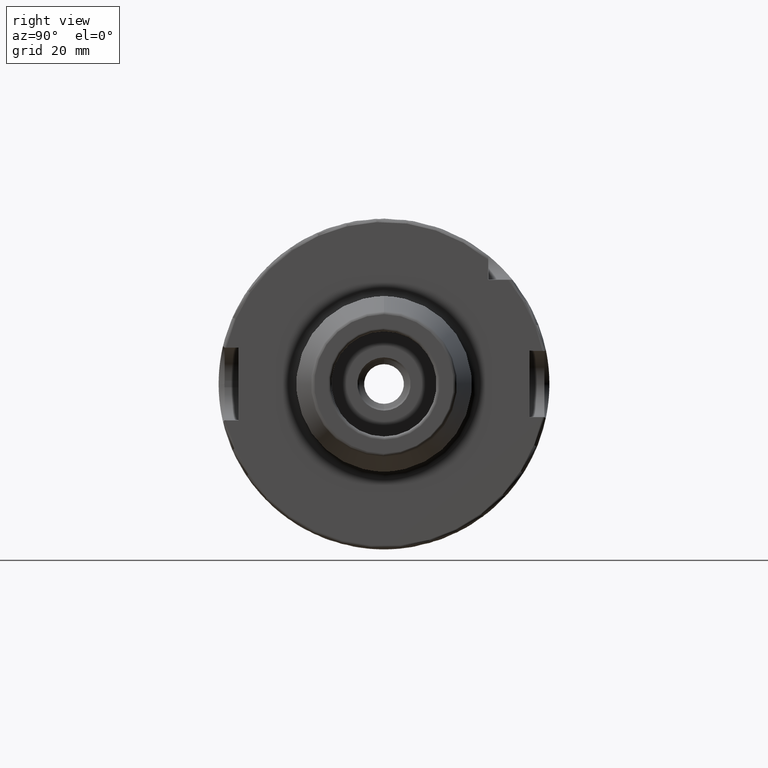
[diagram: clean part render]
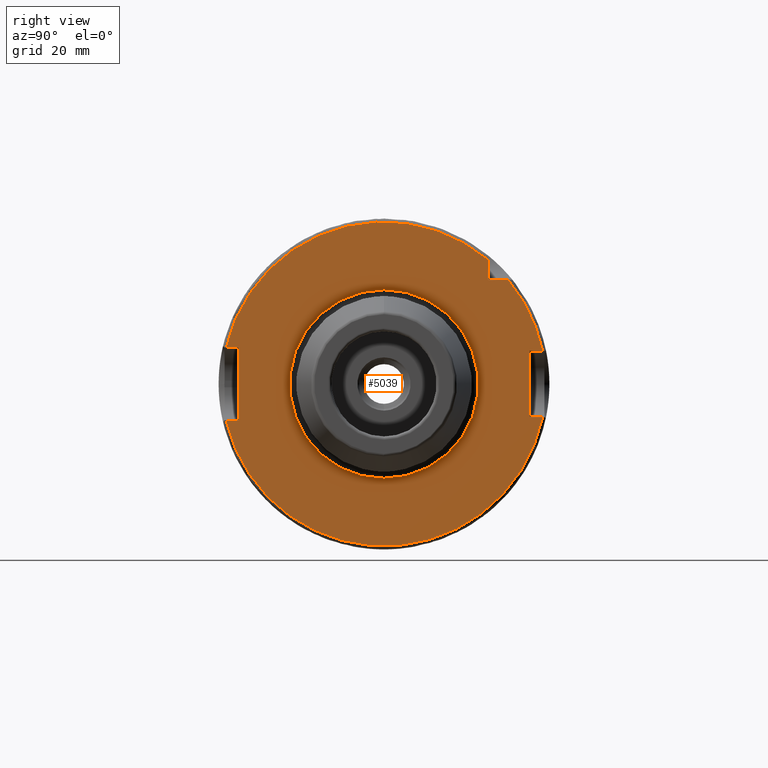
[diagram: same view with one face highlighted and labeled with its STEP entity id]
A machine part, right view. The second image highlights one B-rep face of the part: STEP entity #5039.
In plain terms, the highlighted planar face has unit normal (1, 0, 0).
Its self-contained STEP definition (entity closure, byte-faithful):
#1484=CARTESIAN_POINT('',(2.9E1,0.E0,0.E0));
#1485=DIRECTION('',(1.E0,0.E0,0.E0));
#1486=DIRECTION('',(0.E0,-9.744764396990E-1,-2.244897959184E-1));
#1487=AXIS2_PLACEMENT_3D('',#1484,#1485,#1486);
#1627=CARTESIAN_POINT('',(2.9E1,4.796873982085E1,-1.E1));
#1645=DIRECTION('',(0.E0,1.E0,0.E0));
#1646=VECTOR('',#1645,3.749345545253E0);
#1647=CARTESIAN_POINT('',(2.9E1,-4.774934554525E1,-1.1E1));
#1648=LINE('',#1647,#1646);
#1649=DIRECTION('',(0.E0,0.E0,1.E0));
#1650=VECTOR('',#1649,2.2E1);
#1651=CARTESIAN_POINT('',(2.9E1,-4.4E1,-1.1E1));
#1652=LINE('',#1651,#1650);
#1653=DIRECTION('',(0.E0,1.E0,0.E0));
#1654=VECTOR('',#1653,3.749345545253E0);
#1655=CARTESIAN_POINT('',(2.9E1,-4.774934554525E1,1.1E1));
#1656=LINE('',#1655,#1654);
#1657=DIRECTION('',(0.E0,0.E0,-1.E0));
#1658=VECTOR('',#1657,6.033318531673E0);
#1659=CARTESIAN_POINT('',(2.9E1,3.15E1,3.753331853167E1));
#1660=LINE('',#1659,#1658);
#1661=DIRECTION('',(0.E0,-1.E0,0.E0));
#1662=VECTOR('',#1661,6.033318531673E0);
#1663=CARTESIAN_POINT('',(2.9E1,3.753331853167E1,3.15E1));
#1664=LINE('',#1663,#1662);
#1665=DIRECTION('',(0.E0,-1.E0,0.E0));
#1666=VECTOR('',#1665,3.968739820846E0);
#1667=CARTESIAN_POINT('',(2.9E1,4.796873982085E1,1.E1));
#1668=LINE('',#1667,#1666);
#1669=DIRECTION('',(0.E0,0.E0,-1.E0));
#1670=VECTOR('',#1669,2.E1);
#1671=CARTESIAN_POINT('',(2.9E1,4.4E1,1.E1));
#1672=LINE('',#1671,#1670);
#1673=DIRECTION('',(0.E0,-1.E0,0.E0));
#1674=VECTOR('',#1673,3.968739820846E0);
#1675=CARTESIAN_POINT('',(2.9E1,4.796873982085E1,-1.E1));
#1676=LINE('',#1675,#1674);
#1677=CARTESIAN_POINT('',(2.9E1,0.E0,0.E0));
#1678=DIRECTION('',(1.E0,0.E0,0.E0));
#1679=DIRECTION('',(0.E0,0.E0,-1.E0));
#1680=AXIS2_PLACEMENT_3D('',#1677,#1678,#1679);
#1682=CARTESIAN_POINT('',(2.9E1,0.E0,0.E0));
#1683=DIRECTION('',(1.E0,0.E0,0.E0));
#1684=DIRECTION('',(0.E0,0.E0,1.E0));
#1685=AXIS2_PLACEMENT_3D('',#1682,#1683,#1684);
#1691=CARTESIAN_POINT('',(2.9E1,-4.774934554525E1,-1.1E1));
#1803=CARTESIAN_POINT('',(2.9E1,3.753331853167E1,3.15E1));
#1817=CARTESIAN_POINT('',(2.9E1,0.E0,0.E0));
#1818=DIRECTION('',(1.E0,0.E0,0.E0));
#1819=DIRECTION('',(0.E0,9.789538738948E-1,2.040816326531E-1));
#1820=AXIS2_PLACEMENT_3D('',#1817,#1818,#1819);
#1826=CARTESIAN_POINT('',(2.9E1,4.796873982085E1,1.E1));
#1949=CARTESIAN_POINT('',(2.9E1,3.15E1,3.753331853167E1));
#1965=CARTESIAN_POINT('',(2.9E1,0.E0,0.E0));
#1966=DIRECTION('',(1.E0,0.E0,0.E0));
#1967=DIRECTION('',(0.E0,6.428571428571E-1,7.659860924831E-1));
#1968=AXIS2_PLACEMENT_3D('',#1965,#1966,#1967);
#1970=CARTESIAN_POINT('',(2.9E1,-4.774934554525E1,1.1E1));
#2834=CARTESIAN_POINT('',(2.9E1,4.4E1,1.E1));
#2835=CARTESIAN_POINT('',(2.9E1,4.4E1,-1.E1));
#2836=VERTEX_POINT('',#2834);
#2837=VERTEX_POINT('',#2835);
#2858=CARTESIAN_POINT('',(2.9E1,-4.4E1,-1.1E1));
#2859=CARTESIAN_POINT('',(2.9E1,-4.4E1,1.1E1));
#2860=VERTEX_POINT('',#2858);
#2861=VERTEX_POINT('',#2859);
#2912=CARTESIAN_POINT('',(2.9E1,3.15E1,3.15E1));
#2914=VERTEX_POINT('',#2912);
#3139=VERTEX_POINT('',#1691);
#3140=VERTEX_POINT('',#1627);
#3145=VERTEX_POINT('',#1826);
#3146=VERTEX_POINT('',#1803);
#3149=VERTEX_POINT('',#1949);
#3150=VERTEX_POINT('',#1970);
#3213=CARTESIAN_POINT('',(2.9E1,0.E0,-2.85E1));
#3214=CARTESIAN_POINT('',(2.9E1,0.E0,2.85E1));
#3215=VERTEX_POINT('',#3213);
#3216=VERTEX_POINT('',#3214);
#5006=CARTESIAN_POINT('',(2.9E1,0.E0,0.E0));
#5007=DIRECTION('',(1.E0,0.E0,0.E0));
#5008=DIRECTION('',(0.E0,0.E0,1.E0));
#5009=AXIS2_PLACEMENT_3D('',#5006,#5007,#5008);
#5010=PLANE('',#5009);
#5011=ORIENTED_EDGE('',*,*,#4758,.F.);
#5013=ORIENTED_EDGE('',*,*,#5012,.T.);
#5015=ORIENTED_EDGE('',*,*,#5014,.T.);
#5017=ORIENTED_EDGE('',*,*,#5016,.F.);
#5019=ORIENTED_EDGE('',*,*,#5018,.F.);
#5021=ORIENTED_EDGE('',*,*,#5020,.T.);
#5023=ORIENTED_EDGE('',*,*,#5022,.F.);
#5025=ORIENTED_EDGE('',*,*,#5024,.F.);
#5027=ORIENTED_EDGE('',*,*,#5026,.T.);
#5029=ORIENTED_EDGE('',*,*,#5028,.T.);
#5030=ORIENTED_EDGE('',*,*,#4986,.F.);
#5031=EDGE_LOOP('',(#5011,#5013,#5015,#5017,#5019,#5021,#5023,#5025,#5027,#5029,
#5030));
#5032=FACE_OUTER_BOUND('',#5031,.F.);
#5034=ORIENTED_EDGE('',*,*,#5033,.T.);
#5036=ORIENTED_EDGE('',*,*,#5035,.T.);
#5037=EDGE_LOOP('',(#5034,#5036));
#5038=FACE_BOUND('',#5037,.F.);
#5039=ADVANCED_FACE('',(#5032,#5038),#5010,.T.);
#1488=CIRCLE('',#1487,4.9E1);
#1681=CIRCLE('',#1680,2.85E1);
#1686=CIRCLE('',#1685,2.85E1);
#1821=CIRCLE('',#1820,4.9E1);
#1969=CIRCLE('',#1968,4.9E1);
#4758=EDGE_CURVE('',#3139,#3140,#1488,.T.);
#4986=EDGE_CURVE('',#3140,#2837,#1676,.T.);
#5012=EDGE_CURVE('',#3139,#2860,#1648,.T.);
#5014=EDGE_CURVE('',#2860,#2861,#1652,.T.);
#5016=EDGE_CURVE('',#3150,#2861,#1656,.T.);
#5018=EDGE_CURVE('',#3149,#3150,#1969,.T.);
#5020=EDGE_CURVE('',#3149,#2914,#1660,.T.);
#5022=EDGE_CURVE('',#3146,#2914,#1664,.T.);
#5024=EDGE_CURVE('',#3145,#3146,#1821,.T.);
#5026=EDGE_CURVE('',#3145,#2836,#1668,.T.);
#5028=EDGE_CURVE('',#2836,#2837,#1672,.T.);
#5033=EDGE_CURVE('',#3215,#3216,#1681,.T.);
#5035=EDGE_CURVE('',#3216,#3215,#1686,.T.);